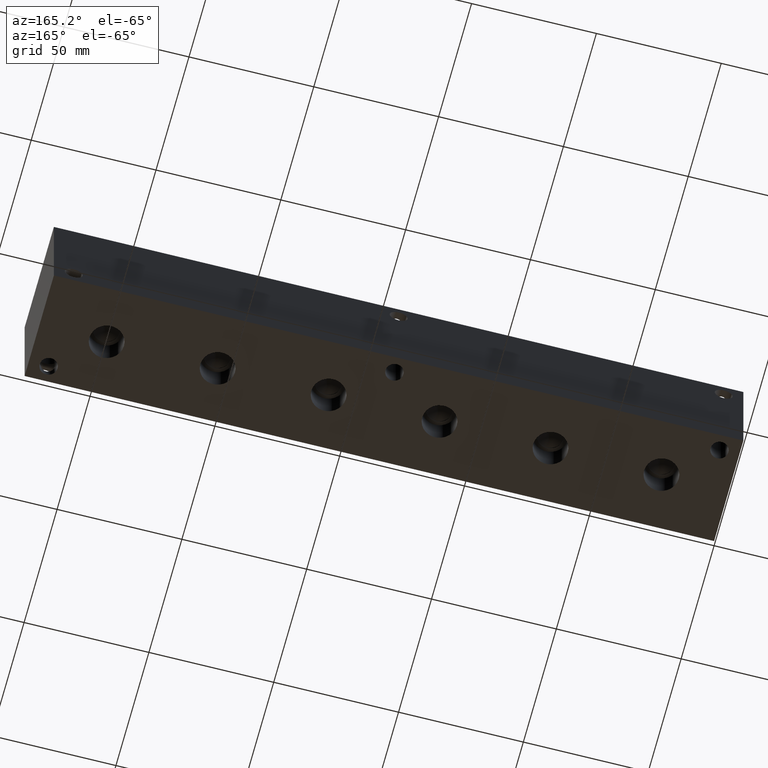
[diagram: clean part render]
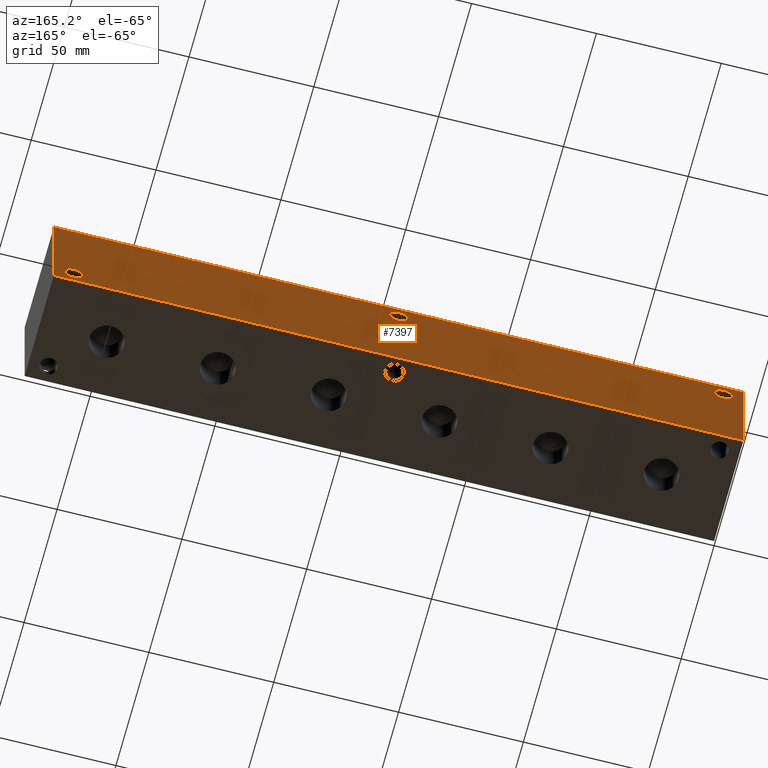
[diagram: same view with one face highlighted and labeled with its STEP entity id]
A machine part, auxiliary view. The second image highlights one B-rep face of the part: STEP entity #7397.
In plain terms, the highlighted planar face has unit normal (0, 1, 0).
Its self-contained STEP definition (entity closure, byte-faithful):
#166=CIRCLE('',#7776,3.5687);
#169=CIRCLE('',#7785,3.5687);
#172=CIRCLE('',#7794,3.5687);
#227=FACE_BOUND('',#1273,.T.);
#228=FACE_BOUND('',#1274,.T.);
#229=FACE_BOUND('',#1275,.T.);
#469=PLANE('',#7805);
#845=FACE_OUTER_BOUND('',#1272,.T.);
#1272=EDGE_LOOP('',(#6587,#6588,#6589,#6590));
#1273=EDGE_LOOP('',(#6591));
#1274=EDGE_LOOP('',(#6592));
#1275=EDGE_LOOP('',(#6593));
#1565=LINE('',#11364,#2273);
#1994=LINE('',#12622,#2702);
#1995=LINE('',#12625,#2703);
#1996=LINE('',#12626,#2704);
#2273=VECTOR('',#8229,10.);
#2702=VECTOR('',#9292,10.);
#2703=VECTOR('',#9295,10.);
#2704=VECTOR('',#9296,10.);
#3200=VERTEX_POINT('',#11361);
#3201=VERTEX_POINT('',#11363);
#3570=VERTEX_POINT('',#12564);
#3575=VERTEX_POINT('',#12580);
#3580=VERTEX_POINT('',#12596);
#3584=VERTEX_POINT('',#12618);
#3586=VERTEX_POINT('',#12624);
#4037=EDGE_CURVE('',#3200,#3201,#1565,.T.);
#4566=EDGE_CURVE('',#3570,#3570,#166,.T.);
#4575=EDGE_CURVE('',#3575,#3575,#169,.T.);
#4584=EDGE_CURVE('',#3580,#3580,#172,.T.);
#4596=EDGE_CURVE('',#3584,#3201,#1994,.T.);
#4597=EDGE_CURVE('',#3586,#3584,#1995,.T.);
#4598=EDGE_CURVE('',#3586,#3200,#1996,.T.);
#6587=ORIENTED_EDGE('',*,*,#4597,.T.);
#6588=ORIENTED_EDGE('',*,*,#4596,.T.);
#6589=ORIENTED_EDGE('',*,*,#4037,.F.);
#6590=ORIENTED_EDGE('',*,*,#4598,.F.);
#6591=ORIENTED_EDGE('',*,*,#4566,.T.);
#6592=ORIENTED_EDGE('',*,*,#4575,.T.);
#6593=ORIENTED_EDGE('',*,*,#4584,.T.);
#7397=ADVANCED_FACE('',(#845,#227,#228,#229),#469,.T.);
#7776=AXIS2_PLACEMENT_3D('',#12566,#9222,#9223);
#7785=AXIS2_PLACEMENT_3D('',#12582,#9242,#9243);
#7794=AXIS2_PLACEMENT_3D('',#12598,#9262,#9263);
#7805=AXIS2_PLACEMENT_3D('',#12623,#9293,#9294);
#8229=DIRECTION('',(-1.,0.,0.));
#9222=DIRECTION('center_axis',(0.,-1.,0.));
#9223=DIRECTION('ref_axis',(1.,0.,0.));
#9242=DIRECTION('center_axis',(0.,-1.,0.));
#9243=DIRECTION('ref_axis',(1.,0.,0.));
#9262=DIRECTION('center_axis',(0.,-1.,0.));
#9263=DIRECTION('ref_axis',(1.,0.,0.));
#9292=DIRECTION('',(0.,0.,1.));
#9293=DIRECTION('center_axis',(0.,1.,0.));
#9294=DIRECTION('ref_axis',(-1.,0.,0.));
#9295=DIRECTION('',(-1.,0.,0.));
#9296=DIRECTION('',(0.,0.,1.));
#11361=CARTESIAN_POINT('',(276.225,44.45,44.45));
#11363=CARTESIAN_POINT('',(0.,44.45,44.45));
#11364=CARTESIAN_POINT('',(276.225,44.45,44.45));
#12564=CARTESIAN_POINT('',(134.5565,44.45,38.1));
#12566=CARTESIAN_POINT('Origin',(138.1252,44.45,38.1));
#12580=CARTESIAN_POINT('',(4.3561,44.45,38.1));
#12582=CARTESIAN_POINT('Origin',(7.9248,44.45,38.1));
#12596=CARTESIAN_POINT('',(264.7061,44.45,6.35));
#12598=CARTESIAN_POINT('Origin',(268.2748,44.45,6.35));
#12618=CARTESIAN_POINT('',(0.,44.45,0.));
#12622=CARTESIAN_POINT('',(0.,44.45,0.));
#12623=CARTESIAN_POINT('Origin',(276.225,44.45,0.));
#12624=CARTESIAN_POINT('',(276.225,44.45,0.));
#12625=CARTESIAN_POINT('',(276.225,44.45,0.));
#12626=CARTESIAN_POINT('',(276.225,44.45,0.));